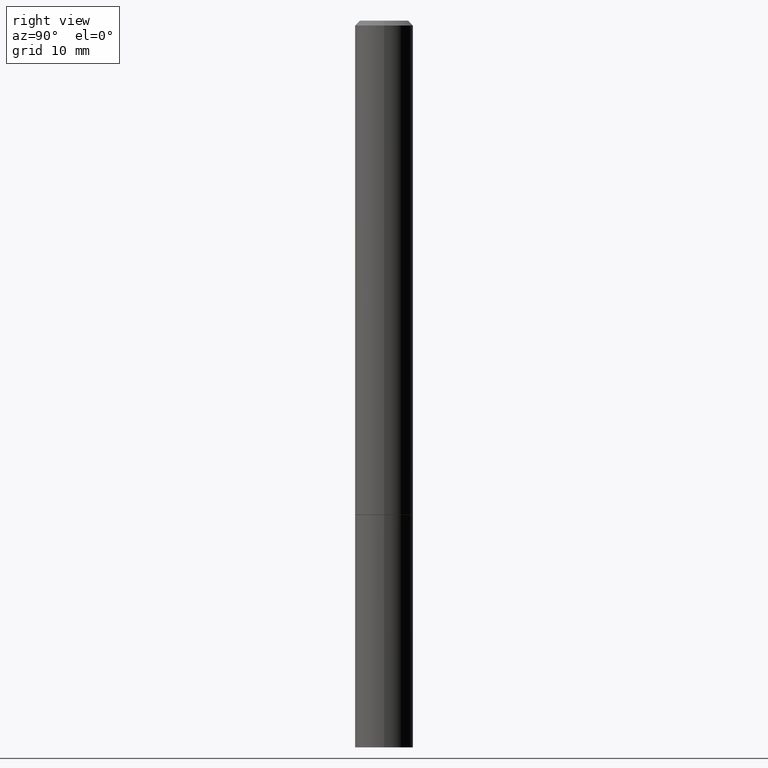
[diagram: clean part render]
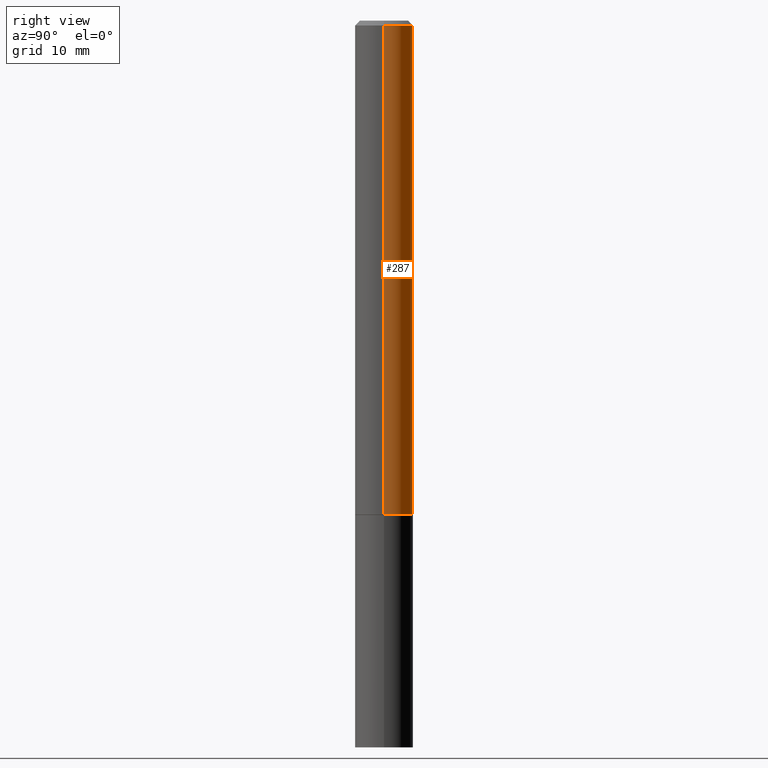
[diagram: same view with one face highlighted and labeled with its STEP entity id]
A machine part, right view. The second image highlights one B-rep face of the part: STEP entity #287.
In plain terms, the highlighted cylindrical surface (edge-blend (fillet) strip) has radius 2.9997 mm, axis along (-0, 0, 1).
Its self-contained STEP definition (entity closure, byte-faithful):
#7 = CYLINDRICAL_SURFACE ( 'NONE', #36, 0.1180999999999998579 ) ;
#15 = VECTOR ( 'NONE', #100, 39.37007874015748143 ) ;
#28 = DIRECTION ( 'NONE',  ( -2.445468806185136597E-29, 3.491481338843145583E-15, 1.000000000000000000 ) ) ;
#32 = EDGE_CURVE ( 'NONE', #48, #194, #123, .T. ) ;
#36 = AXIS2_PLACEMENT_3D ( 'NONE', #158, #172, #66 ) ;
#48 = VERTEX_POINT ( 'NONE', #209 ) ;
#54 = CARTESIAN_POINT ( 'NONE',  ( 0.1180999999999999689, -7.831741791159054599E-15, -2.006899999999999462 ) ) ;
#60 = EDGE_CURVE ( 'NONE', #251, #316, #325, .T. ) ;
#66 = DIRECTION ( 'NONE',  ( 1.000000000000000000, -6.982962677686266711E-15, 4.876176775795935793E-29 ) ) ;
#82 = DIRECTION ( 'NONE',  ( -2.445468806185136597E-29, 3.491481338843145583E-15, 1.000000000000000000 ) ) ;
#93 = CARTESIAN_POINT ( 'NONE',  ( -0.1180999999999998579, 8.391509709326773096E-16, -5.809262341591036777E-30 ) ) ;
#100 = DIRECTION ( 'NONE',  ( -2.445468806185136877E-29, 3.491481338843145188E-15, 1.000000000000000000 ) ) ;
#103 = VECTOR ( 'NONE', #159, 39.37007874015748143 ) ;
#108 = ORIENTED_EDGE ( 'NONE', *, *, #60, .F. ) ;
#123 = LINE ( 'NONE', #93, #15 ) ;
#141 = EDGE_LOOP ( 'NONE', ( #187, #365, #165, #108 ) ) ;
#143 = DIRECTION ( 'NONE',  ( 1.000000000000000000, -6.982962677686266711E-15, 0.000000000000000000 ) ) ;
#149 = EDGE_CURVE ( 'NONE', #251, #48, #216, .T. ) ;
#151 = DIRECTION ( 'NONE',  ( 1.000000000000000000, -6.982962677686266711E-15, 0.000000000000000000 ) ) ;
#158 = CARTESIAN_POINT ( 'NONE',  ( 0.000000000000000000, 0.000000000000000000, 0.000000000000000000 ) ) ;
#159 = DIRECTION ( 'NONE',  ( -2.445468806185136877E-29, 3.491481338843145188E-15, 1.000000000000000000 ) ) ;
#165 = ORIENTED_EDGE ( 'NONE', *, *, #354, .F. ) ;
#172 = DIRECTION ( 'NONE',  ( -2.445468806185136597E-29, 3.491481338843145583E-15, 1.000000000000000000 ) ) ;
#174 = CIRCLE ( 'NONE', #351, 0.1180999999999997607 ) ;
#187 = ORIENTED_EDGE ( 'NONE', *, *, #149, .T. ) ;
#194 = VERTEX_POINT ( 'NONE', #310 ) ;
#209 = CARTESIAN_POINT ( 'NONE',  ( -0.1180999999999999689, -2.699290791917903859E-15, -2.006899999999999462 ) ) ;
#216 = CIRCLE ( 'NONE', #222, 0.1180999999999999689 ) ;
#220 = CARTESIAN_POINT ( 'NONE',  ( 4.907811347132949706E-29, -7.007053898924307126E-15, -2.006899999999999462 ) ) ;
#222 = AXIS2_PLACEMENT_3D ( 'NONE', #220, #82, #143 ) ;
#235 = FACE_OUTER_BOUND ( 'NONE', #141, .T. ) ;
#251 = VERTEX_POINT ( 'NONE', #54 ) ;
#282 = CARTESIAN_POINT ( 'NONE',  ( 4.890937612370287172E-31, -6.982962677686310098E-17, -0.02000000000000005593 ) ) ;
#287 = ADVANCED_FACE ( 'NONE', ( #235 ), #7, .T. ) ;
#304 = CARTESIAN_POINT ( 'NONE',  ( 0.1180999999999998579, -8.246878922347470793E-16, 5.758764772214993434E-30 ) ) ;
#310 = CARTESIAN_POINT ( 'NONE',  ( -0.1180999999999997607, 7.548582654578832881E-16, -0.02000000000000005593 ) ) ;
#316 = VERTEX_POINT ( 'NONE', #338 ) ;
#325 = LINE ( 'NONE', #304, #103 ) ;
#338 = CARTESIAN_POINT ( 'NONE',  ( 0.1180999999999997607, -8.800544403136792597E-16, -0.02000000000000005593 ) ) ;
#351 = AXIS2_PLACEMENT_3D ( 'NONE', #282, #28, #151 ) ;
#354 = EDGE_CURVE ( 'NONE', #316, #194, #174, .T. ) ;
#365 = ORIENTED_EDGE ( 'NONE', *, *, #32, .T. ) ;